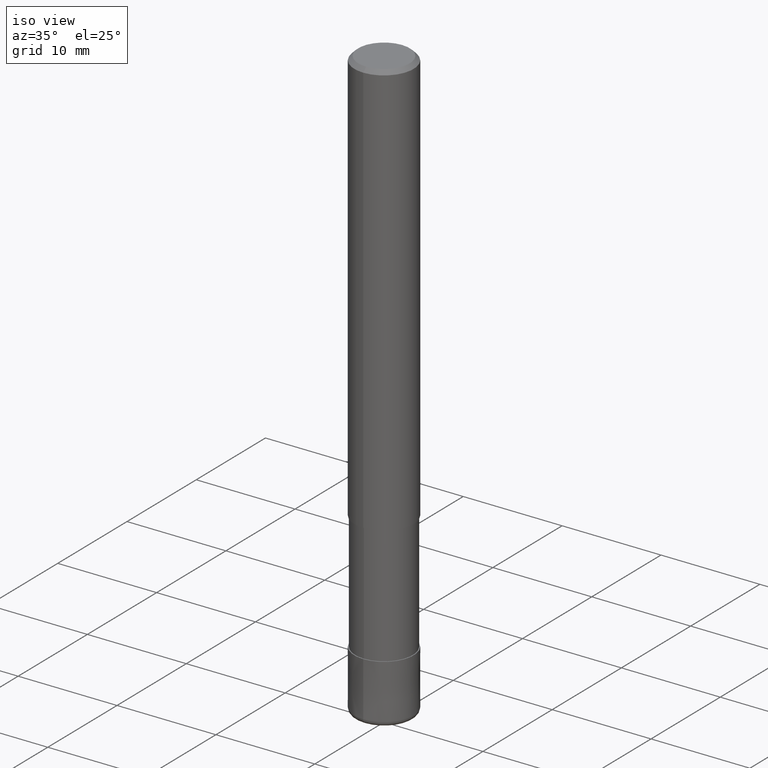
[diagram: clean part render]
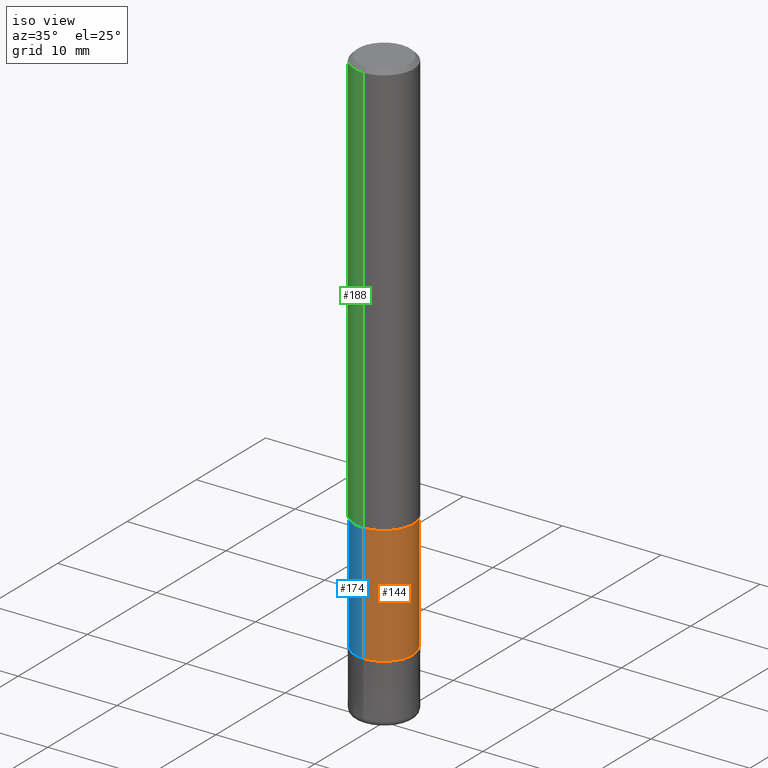
[diagram: same view with three faces highlighted in distinct colors, each labeled with its STEP entity id]
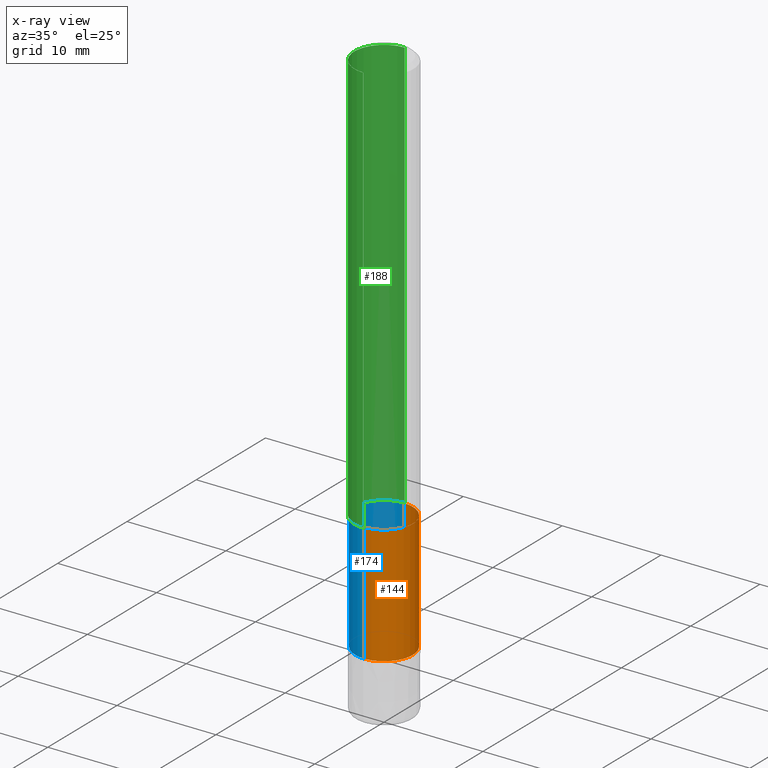
[diagram: x-ray of the same camera — body ghosted, the three highlighted faces saturated]
A machine part, iso view with three faces highlighted in distinct colors.
The next image is the same camera in x-ray (body ghosted, the three faces saturated) — at least one of them is partly hidden behind the body in this view.
Their STEP definitions:

[orange] entity #144 — the highlighted cylindrical surface (edge-blend (fillet) strip) has radius 2.9099 mm, axis along (-0, -0, 1).
#94=VERTEX_POINT('',#231);
#106=EDGE_CURVE('',#190,#156,#244,.T.);
#136=EDGE_CURVE('',#190,#192,#278,.T.);
#144=ADVANCED_FACE('',(#286),#287,.T.);
#146=EDGE_CURVE('',#94,#192,#289,.T.);
#156=VERTEX_POINT('',#301);
#190=VERTEX_POINT('',#341);
#192=VERTEX_POINT('',#343);
#208=EDGE_CURVE('',#156,#94,#361,.T.);
#231=CARTESIAN_POINT('',(3.56354325930543E-016,-2.90995,-54.0));
#244=LINE('',#396,#397);
#278=CIRCLE('',#436,2.90995);
#286=FACE_OUTER_BOUND('',#445,.T.);
#287=CYLINDRICAL_SURFACE('',#446,2.90995);
#289=LINE('',#449,#450);
#301=CARTESIAN_POINT('',(0.0,2.90995,-54.0));
#341=CARTESIAN_POINT('',(0.0,2.90995,-42.0));
#343=CARTESIAN_POINT('',(3.56354325930543E-016,-2.90995,-42.0));
#361=CIRCLE('',#538,2.90995);
#396=CARTESIAN_POINT('',(-3.56354325930543E-016,2.90995,-48.0));
#397=VECTOR('',#561,1.0);
#436=AXIS2_PLACEMENT_3D('',#612,#613,#614);
#445=EDGE_LOOP('',(#619,#620,#621,#622));
#446=AXIS2_PLACEMENT_3D('',#623,#624,#625);
#449=CARTESIAN_POINT('',(3.56354325930543E-016,-2.90995,-48.0));
#450=VECTOR('',#626,1.0);
#538=AXIS2_PLACEMENT_3D('',#713,#714,#715);
#561=DIRECTION('',(0.0,0.0,-1.0));
#612=CARTESIAN_POINT('',(0.0,0.0,-42.0));
#613=DIRECTION('',(0.0,0.0,-1.0));
#614=DIRECTION('',(0.0,1.0,0.0));
#619=ORIENTED_EDGE('',*,*,#106,.F.);
#620=ORIENTED_EDGE('',*,*,#136,.T.);
#621=ORIENTED_EDGE('',*,*,#146,.F.);
#622=ORIENTED_EDGE('',*,*,#208,.F.);
#623=CARTESIAN_POINT('',(0.0,0.0,-48.0));
#624=DIRECTION('',(-0.0,-0.0,1.0));
#625=DIRECTION('',(0.0,1.0,0.0));
#626=DIRECTION('',(-0.0,-0.0,1.0));
#713=CARTESIAN_POINT('',(0.0,0.0,-54.0));
#714=DIRECTION('',(0.0,0.0,-1.0));
#715=DIRECTION('',(0.0,1.0,0.0));

[blue] entity #174 — the highlighted cylindrical surface (edge-blend (fillet) strip) has radius 2.9099 mm, axis along (-0, -0, 1).
#94=VERTEX_POINT('',#231);
#106=EDGE_CURVE('',#190,#156,#244,.T.);
#146=EDGE_CURVE('',#94,#192,#289,.T.);
#156=VERTEX_POINT('',#301);
#172=EDGE_CURVE('',#94,#156,#317,.T.);
#174=ADVANCED_FACE('',(#319),#320,.T.);
#184=EDGE_CURVE('',#192,#190,#334,.T.);
#190=VERTEX_POINT('',#341);
#192=VERTEX_POINT('',#343);
#231=CARTESIAN_POINT('',(3.56354325930543E-016,-2.90995,-54.0));
#244=LINE('',#396,#397);
#289=LINE('',#449,#450);
#301=CARTESIAN_POINT('',(0.0,2.90995,-54.0));
#317=CIRCLE('',#483,2.90995);
#319=FACE_OUTER_BOUND('',#485,.T.);
#320=CYLINDRICAL_SURFACE('',#486,2.90995);
#334=CIRCLE('',#503,2.90995);
#341=CARTESIAN_POINT('',(0.0,2.90995,-42.0));
#343=CARTESIAN_POINT('',(3.56354325930543E-016,-2.90995,-42.0));
#396=CARTESIAN_POINT('',(-3.56354325930543E-016,2.90995,-48.0));
#397=VECTOR('',#561,1.0);
#449=CARTESIAN_POINT('',(3.56354325930543E-016,-2.90995,-48.0));
#450=VECTOR('',#626,1.0);
#483=AXIS2_PLACEMENT_3D('',#650,#651,#652);
#485=EDGE_LOOP('',(#654,#655,#656,#657));
#486=AXIS2_PLACEMENT_3D('',#658,#659,#660);
#503=AXIS2_PLACEMENT_3D('',#682,#683,#684);
#561=DIRECTION('',(0.0,0.0,-1.0));
#626=DIRECTION('',(-0.0,-0.0,1.0));
#650=CARTESIAN_POINT('',(0.0,0.0,-54.0));
#651=DIRECTION('',(0.0,0.0,-1.0));
#652=DIRECTION('',(0.0,1.0,0.0));
#654=ORIENTED_EDGE('',*,*,#106,.T.);
#655=ORIENTED_EDGE('',*,*,#172,.F.);
#656=ORIENTED_EDGE('',*,*,#146,.T.);
#657=ORIENTED_EDGE('',*,*,#184,.T.);
#658=CARTESIAN_POINT('',(0.0,0.0,-48.0));
#659=DIRECTION('',(-0.0,-0.0,1.0));
#660=DIRECTION('',(0.0,1.0,0.0));
#682=CARTESIAN_POINT('',(0.0,0.0,-42.0));
#683=DIRECTION('',(0.0,0.0,-1.0));
#684=DIRECTION('',(0.0,1.0,0.0));

[green] entity #188 — the highlighted cylindrical surface (edge-blend (fillet) strip) has radius 3 mm, axis along (-0, -0, 1).
#108=VERTEX_POINT('',#246);
#110=EDGE_CURVE('',#164,#108,#248,.T.);
#140=EDGE_CURVE('',#166,#150,#282,.T.);
#150=VERTEX_POINT('',#294);
#164=VERTEX_POINT('',#309);
#166=VERTEX_POINT('',#311);
#170=EDGE_CURVE('',#108,#150,#315,.T.);
#182=EDGE_CURVE('',#166,#164,#332,.T.);
#188=ADVANCED_FACE('',(#338),#339,.T.);
#246=CARTESIAN_POINT('',(0.0,3.0,-0.399999999999999));
#248=CIRCLE('',#402,3.0);
#282=CIRCLE('',#441,3.0);
#294=CARTESIAN_POINT('',(0.0,3.0,-42.0));
#309=CARTESIAN_POINT('',(3.67381906146713E-016,-3.0,-0.399999999999999));
#311=CARTESIAN_POINT('',(3.67381906146713E-016,-3.0,-42.0));
#315=LINE('',#479,#480);
#332=LINE('',#499,#500);
#338=FACE_OUTER_BOUND('',#507,.T.);
#339=CYLINDRICAL_SURFACE('',#508,3.0);
#402=AXIS2_PLACEMENT_3D('',#562,#563,#564);
#441=AXIS2_PLACEMENT_3D('',#615,#616,#617);
#479=CARTESIAN_POINT('',(-3.67381906146713E-016,3.0,-21.2));
#480=VECTOR('',#649,1.0);
#499=CARTESIAN_POINT('',(3.67381906146713E-016,-3.0,-21.2));
#500=VECTOR('',#681,1.0);
#507=EDGE_LOOP('',(#686,#687,#688,#689));
#508=AXIS2_PLACEMENT_3D('',#690,#691,#692);
#562=CARTESIAN_POINT('',(0.0,0.0,-0.399999999999999));
#563=DIRECTION('',(0.0,0.0,-1.0));
#564=DIRECTION('',(0.0,1.0,0.0));
#615=CARTESIAN_POINT('',(0.0,0.0,-42.0));
#616=DIRECTION('',(0.0,0.0,-1.0));
#617=DIRECTION('',(0.0,1.0,0.0));
#649=DIRECTION('',(0.0,0.0,-1.0));
#681=DIRECTION('',(-0.0,-0.0,1.0));
#686=ORIENTED_EDGE('',*,*,#170,.T.);
#687=ORIENTED_EDGE('',*,*,#140,.F.);
#688=ORIENTED_EDGE('',*,*,#182,.T.);
#689=ORIENTED_EDGE('',*,*,#110,.T.);
#690=CARTESIAN_POINT('',(0.0,0.0,-21.2));
#691=DIRECTION('',(-0.0,-0.0,1.0));
#692=DIRECTION('',(0.0,1.0,0.0));